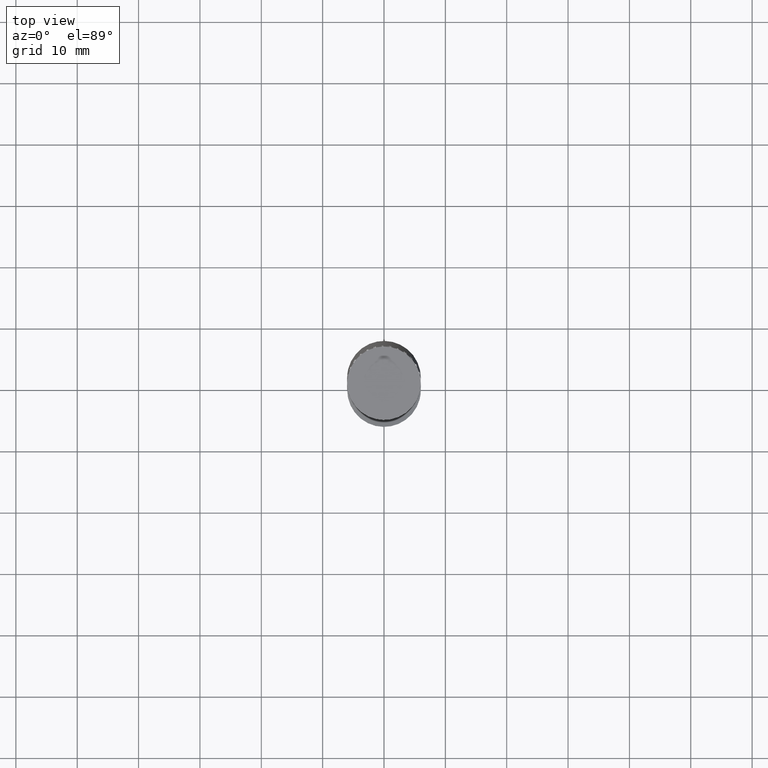
[diagram: clean part render]
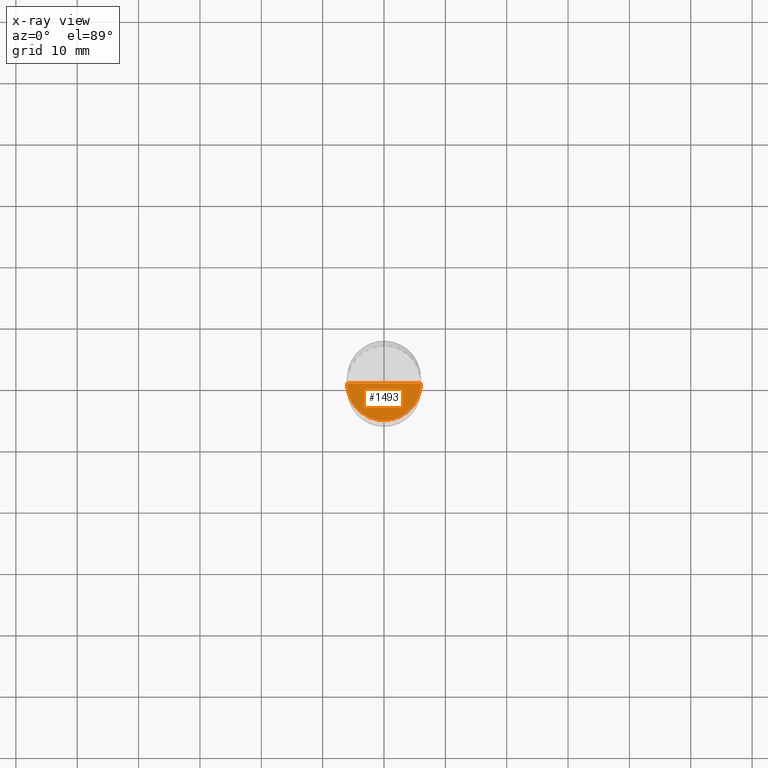
[diagram: x-ray — body ghosted, one internal face saturated and labeled with its STEP entity id]
A machine part, top view, then the same camera in x-ray: the body is ghosted and one INTERNAL B-rep face — a face not visible from any outside direction — is saturated and labeled: STEP entity #1493.
In plain terms, the highlighted face is a freeform B-spline surface patch.
Its self-contained STEP definition (entity closure, byte-faithful):
#1340=CARTESIAN_POINT('',(6.0,0.0,-7.0));
#1344=CARTESIAN_POINT('',(-6.0,0.0,-7.0));
#1345=CARTESIAN_POINT('',(0.0,0.0,-7.0));
#1349=CARTESIAN_POINT('',(-6.0,-6.0,-7.0));
#1350=CARTESIAN_POINT('',(0.0,-6.0,-7.0));
#1351=CARTESIAN_POINT('',(6.0,-6.0,-7.0));
#1478=(
BOUNDED_SURFACE()
B_SPLINE_SURFACE(1,2,(
(#1344,#1349,#1350,#1351,#1340),
(#1345,#1345,#1345,#1345,#1345)
), .UNSPECIFIED.,.F.,.F.,.F.)
B_SPLINE_SURFACE_WITH_KNOTS((2,2),(3,2,3),(
0.0,1.0),(
0.0,0.5,1.0), .UNSPECIFIED.)
GEOMETRIC_REPRESENTATION_ITEM()
RATIONAL_B_SPLINE_SURFACE(((1.0,0.707106781187,1.0,0.707106781187,1.0),
(1.0,0.707106781187,1.0,0.707106781187,1.0)
))
REPRESENTATION_ITEM('')
SURFACE()
);
#1479=(
BOUNDED_CURVE()
B_SPLINE_CURVE(2,(#1340,#1351,#1350,#1349,#1344),.UNSPECIFIED.,.F.,.F.)
B_SPLINE_CURVE_WITH_KNOTS((3,2,3),
(0.0,0.5,1.0),.UNSPECIFIED.)
CURVE()
GEOMETRIC_REPRESENTATION_ITEM()
RATIONAL_B_SPLINE_CURVE((1.0,0.707106781187,1.0,0.707106781187,1.0))
REPRESENTATION_ITEM('')
);
#1480=(
BOUNDED_CURVE()
B_SPLINE_CURVE(1,(#1344,#1345),.UNSPECIFIED.,.F.,.F.)
B_SPLINE_CURVE_WITH_KNOTS((2,2),
(0.0,1.0),.UNSPECIFIED.)
CURVE()
GEOMETRIC_REPRESENTATION_ITEM()
RATIONAL_B_SPLINE_CURVE((1.0,1.0))
REPRESENTATION_ITEM('')
);
#1481=(
BOUNDED_CURVE()
B_SPLINE_CURVE(1,(#1345,#1340),.UNSPECIFIED.,.F.,.F.)
B_SPLINE_CURVE_WITH_KNOTS((2,2),
(0.0,1.0),.UNSPECIFIED.)
CURVE()
GEOMETRIC_REPRESENTATION_ITEM()
RATIONAL_B_SPLINE_CURVE((1.0,1.0))
REPRESENTATION_ITEM('')
);
#1482=VERTEX_POINT('',#1340);
#1483=VERTEX_POINT('',#1344);
#1484=VERTEX_POINT('',#1345);
#1485=EDGE_CURVE('',#1482,#1483,#1479,.T.);
#1486=EDGE_CURVE('',#1483,#1484,#1480,.T.);
#1487=EDGE_CURVE('',#1484,#1482,#1481,.T.);
#1488=ORIENTED_EDGE('',*,*,#1485,.T.);
#1489=ORIENTED_EDGE('',*,*,#1486,.T.);
#1490=ORIENTED_EDGE('',*,*,#1487,.T.);
#1491=EDGE_LOOP('',(#1488,#1489,#1490));
#1492=FACE_OUTER_BOUND('',#1491,.T.);
#1493=ADVANCED_FACE('',(#1492),#1478,.T.);